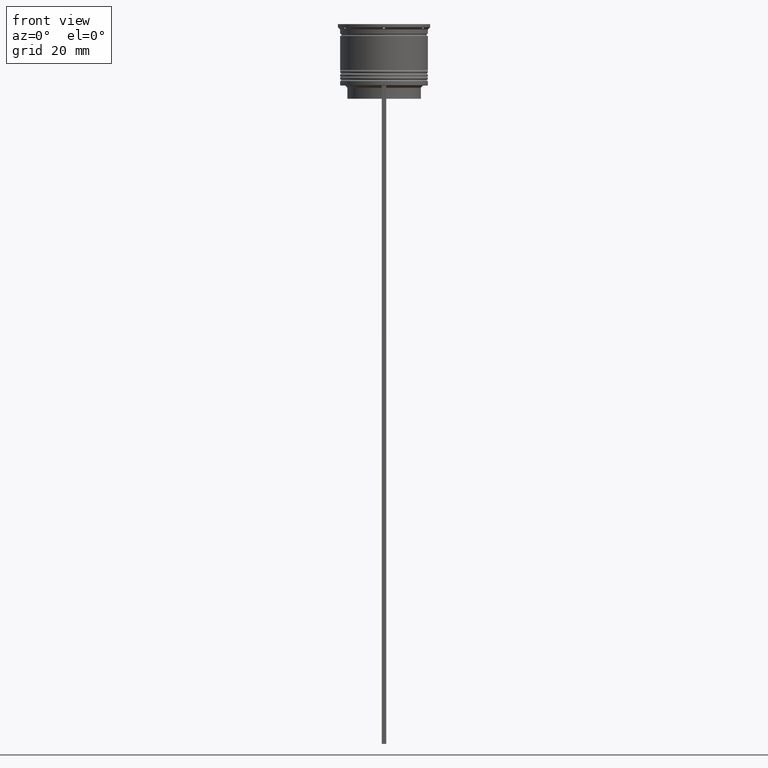
[diagram: clean part render]
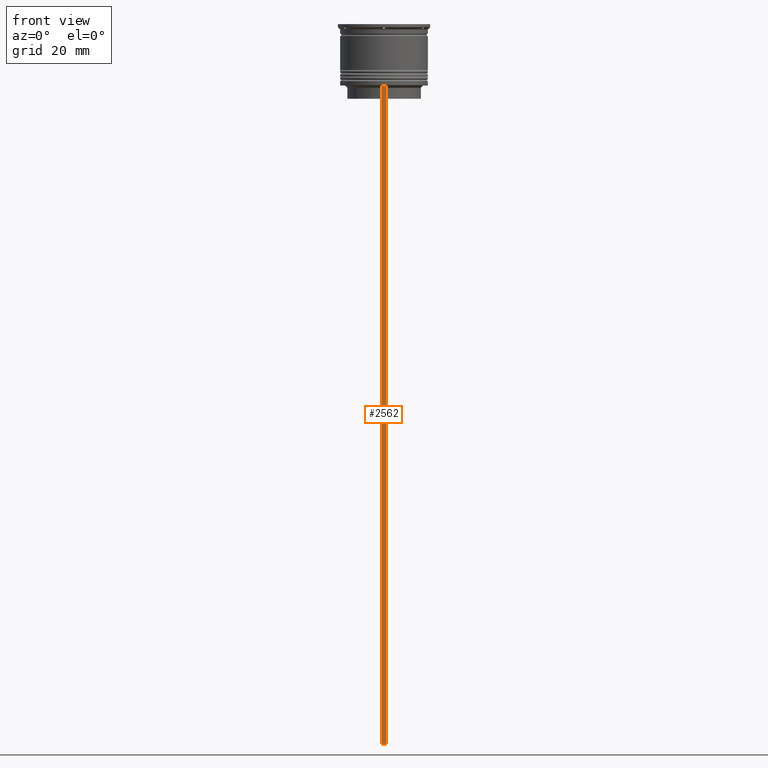
[diagram: same view with one face highlighted and labeled with its STEP entity id]
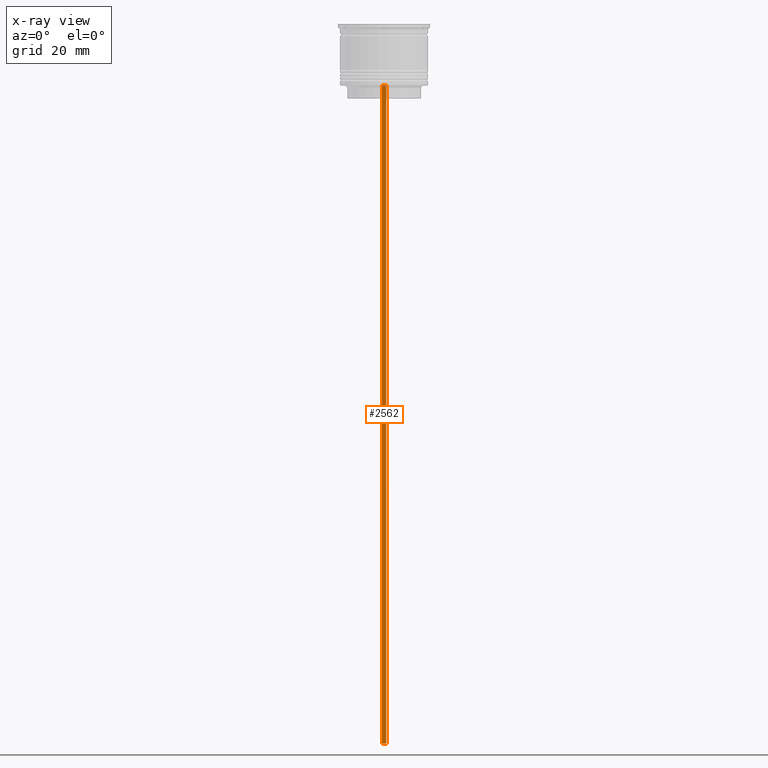
[diagram: x-ray of the same camera — body ghosted, the highlighted face saturated]
A machine part, front view. The second image highlights one B-rep face of the part: STEP entity #2562.
The next image is the same camera in x-ray: the body ghosted, the highlighted face saturated — about 0% of this face is hidden behind the body in this view.
In plain terms, the highlighted planar face has unit normal (0, -1, -0).
Its self-contained STEP definition (entity closure, byte-faithful):
#51 = CARTESIAN_POINT ( 'NONE',  ( -0.5000000000000001110, -9.749999999999998224, -163.9999999999999716 ) ) ;
#75 = DIRECTION ( 'NONE',  ( 0.000000000000000000, 0.000000000000000000, -1.000000000000000000 ) ) ;
#123 = LINE ( 'NONE', #1311, #1638 ) ;
#195 = PLANE ( 'NONE',  #256 ) ;
#237 = VECTOR ( 'NONE', #949, 1000.000000000000000 ) ;
#256 = AXIS2_PLACEMENT_3D ( 'NONE', #1773, #2123, #1193 ) ;
#292 = VERTEX_POINT ( 'NONE', #51 ) ;
#299 = EDGE_CURVE ( 'NONE', #1215, #1828, #843, .T. ) ;
#355 = LINE ( 'NONE', #1525, #237 ) ;
#496 = VECTOR ( 'NONE', #2289, 1000.000000000000000 ) ;
#658 = VERTEX_POINT ( 'NONE', #839 ) ;
#693 = EDGE_LOOP ( 'NONE', ( #1055, #1217, #828, #2376 ) ) ;
#828 = ORIENTED_EDGE ( 'NONE', *, *, #899, .F. ) ;
#839 = CARTESIAN_POINT ( 'NONE',  ( -0.5000000000000001110, -9.749999999999998224, -14.00000000000000178 ) ) ;
#843 = LINE ( 'NONE', #1056, #2235 ) ;
#883 = LINE ( 'NONE', #1672, #496 ) ;
#885 = EDGE_CURVE ( 'NONE', #658, #1215, #123, .T. ) ;
#899 = EDGE_CURVE ( 'NONE', #1828, #292, #355, .T. ) ;
#949 = DIRECTION ( 'NONE',  ( -1.000000000000000000, 0.000000000000000000, 0.000000000000000000 ) ) ;
#1055 = ORIENTED_EDGE ( 'NONE', *, *, #885, .F. ) ;
#1056 = CARTESIAN_POINT ( 'NONE',  ( 0.4999999999999998890, -9.749999999999998224, 5.525624189766635830 ) ) ;
#1127 = CARTESIAN_POINT ( 'NONE',  ( 0.4999999999999998890, -9.749999999999998224, -14.00000000000000178 ) ) ;
#1193 = DIRECTION ( 'NONE',  ( 0.000000000000000000, 0.000000000000000000, -1.000000000000000000 ) ) ;
#1215 = VERTEX_POINT ( 'NONE', #1127 ) ;
#1217 = ORIENTED_EDGE ( 'NONE', *, *, #2505, .T. ) ;
#1311 = CARTESIAN_POINT ( 'NONE',  ( 0.4999999999999998890, -9.749999999999998224, -14.00000000000000178 ) ) ;
#1525 = CARTESIAN_POINT ( 'NONE',  ( 0.4999999999999998890, -9.749999999999998224, -163.9999999999999716 ) ) ;
#1638 = VECTOR ( 'NONE', #1700, 1000.000000000000000 ) ;
#1672 = CARTESIAN_POINT ( 'NONE',  ( -0.5000000000000001110, -9.749999999999998224, 5.525624189766635830 ) ) ;
#1700 = DIRECTION ( 'NONE',  ( 1.000000000000000000, 0.000000000000000000, 0.000000000000000000 ) ) ;
#1773 = CARTESIAN_POINT ( 'NONE',  ( 0.4999999999999998890, -9.749999999999998224, 5.525624189766635830 ) ) ;
#1828 = VERTEX_POINT ( 'NONE', #2121 ) ;
#2121 = CARTESIAN_POINT ( 'NONE',  ( 0.4999999999999998890, -9.749999999999998224, -163.9999999999999716 ) ) ;
#2123 = DIRECTION ( 'NONE',  ( 0.000000000000000000, -1.000000000000000000, -0.000000000000000000 ) ) ;
#2235 = VECTOR ( 'NONE', #75, 1000.000000000000000 ) ;
#2289 = DIRECTION ( 'NONE',  ( 0.000000000000000000, 0.000000000000000000, -1.000000000000000000 ) ) ;
#2376 = ORIENTED_EDGE ( 'NONE', *, *, #299, .F. ) ;
#2379 = FACE_OUTER_BOUND ( 'NONE', #693, .T. ) ;
#2505 = EDGE_CURVE ( 'NONE', #658, #292, #883, .T. ) ;
#2562 = ADVANCED_FACE ( 'NONE', ( #2379 ), #195, .T. ) ;